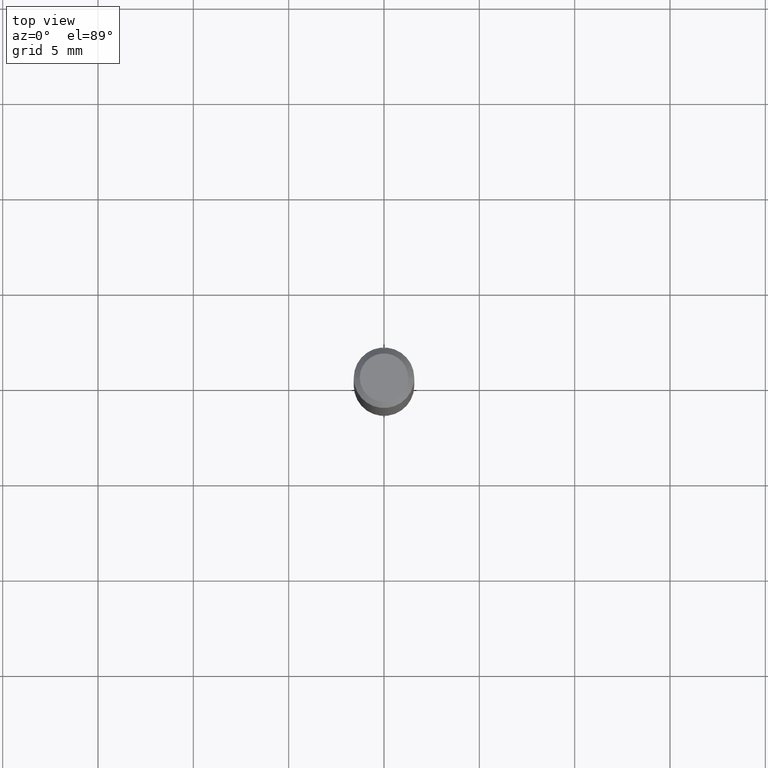
[diagram: clean part render]
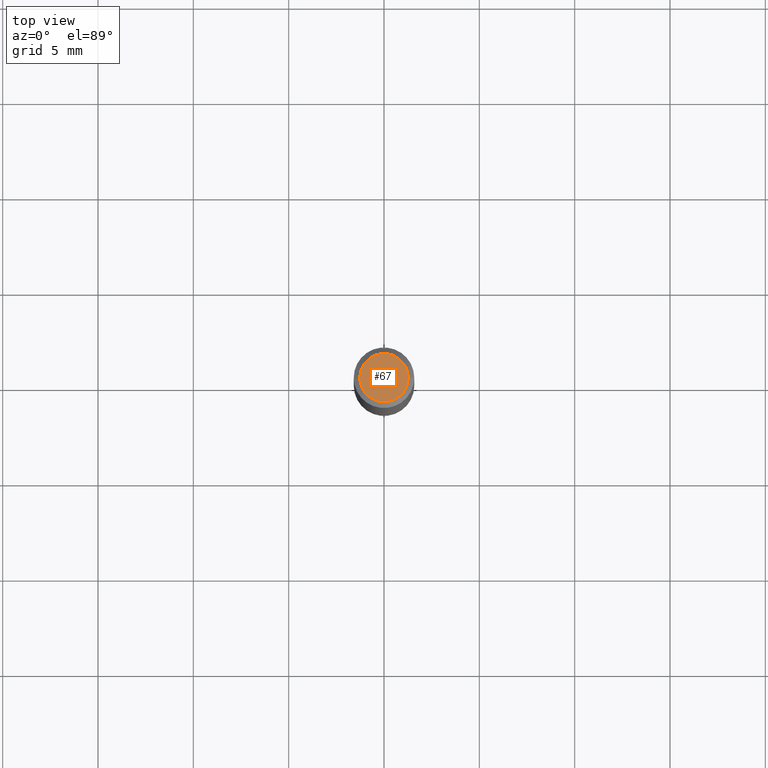
[diagram: same view with one face highlighted and labeled with its STEP entity id]
A machine part, top view. The second image highlights one B-rep face of the part: STEP entity #67.
In plain terms, the highlighted planar face has unit normal (0, -0, -1).
Its self-contained STEP definition (entity closure, byte-faithful):
#41 = DIRECTION ( 'NONE',  ( -1.000000000000000000, 6.982962677686265922E-15, -4.876176775795935793E-29 ) ) ;
#64 = VERTEX_POINT ( 'NONE', #147 ) ;
#67 = ADVANCED_FACE ( 'NONE', ( #215 ), #279, .F. ) ;
#75 = CIRCLE ( 'NONE', #330, 0.04999999999999999584 ) ;
#98 = EDGE_CURVE ( 'NONE', #180, #64, #309, .T. ) ;
#110 = ORIENTED_EDGE ( 'NONE', *, *, #98, .T. ) ;
#125 = CARTESIAN_POINT ( 'NONE',  ( 1.946643104841063088E-47, -2.779290439833033990E-33, -7.960204194457798443E-19 ) ) ;
#147 = CARTESIAN_POINT ( 'NONE',  ( 0.04999999999999999584, -4.077247707424184705E-16, -1.592040838888913461E-18 ) ) ;
#180 = VERTEX_POINT ( 'NONE', #354 ) ;
#200 = DIRECTION ( 'NONE',  ( 2.438088387897960049E-29, -3.491481338843145188E-15, -1.000000000000000000 ) ) ;
#215 = FACE_OUTER_BOUND ( 'NONE', #256, .T. ) ;
#221 = AXIS2_PLACEMENT_3D ( 'NONE', #317, #454, #360 ) ;
#232 = DIRECTION ( 'NONE',  ( 1.000000000000000000, -6.982962677686265922E-15, 4.875957971899673662E-29 ) ) ;
#239 = AXIS2_PLACEMENT_3D ( 'NONE', #125, #200, #41 ) ;
#256 = EDGE_LOOP ( 'NONE', ( #110, #349 ) ) ;
#279 = PLANE ( 'NONE',  #239 ) ;
#309 = CIRCLE ( 'NONE', #221, 0.04999999999999999584 ) ;
#317 = CARTESIAN_POINT ( 'NONE',  ( 3.893286209682126177E-47, -5.558580879666067980E-33, -1.592040838891559689E-18 ) ) ;
#330 = AXIS2_PLACEMENT_3D ( 'NONE', #484, #421, #232 ) ;
#349 = ORIENTED_EDGE ( 'NONE', *, *, #420, .T. ) ;
#354 = CARTESIAN_POINT ( 'NONE',  ( -0.04999999999999999584, 3.709698922520826725E-16, -1.592040838894077649E-18 ) ) ;
#360 = DIRECTION ( 'NONE',  ( 1.000000000000000000, -6.982962677686265922E-15, 4.875957971899673662E-29 ) ) ;
#420 = EDGE_CURVE ( 'NONE', #64, #180, #75, .T. ) ;
#421 = DIRECTION ( 'NONE',  ( -2.445468806185136597E-29, 3.491481338843145583E-15, 1.000000000000000000 ) ) ;
#454 = DIRECTION ( 'NONE',  ( -2.445468806185136597E-29, 3.491481338843145583E-15, 1.000000000000000000 ) ) ;
#484 = CARTESIAN_POINT ( 'NONE',  ( 3.893286209682126177E-47, -5.558580879666067980E-33, -1.592040838891559689E-18 ) ) ;